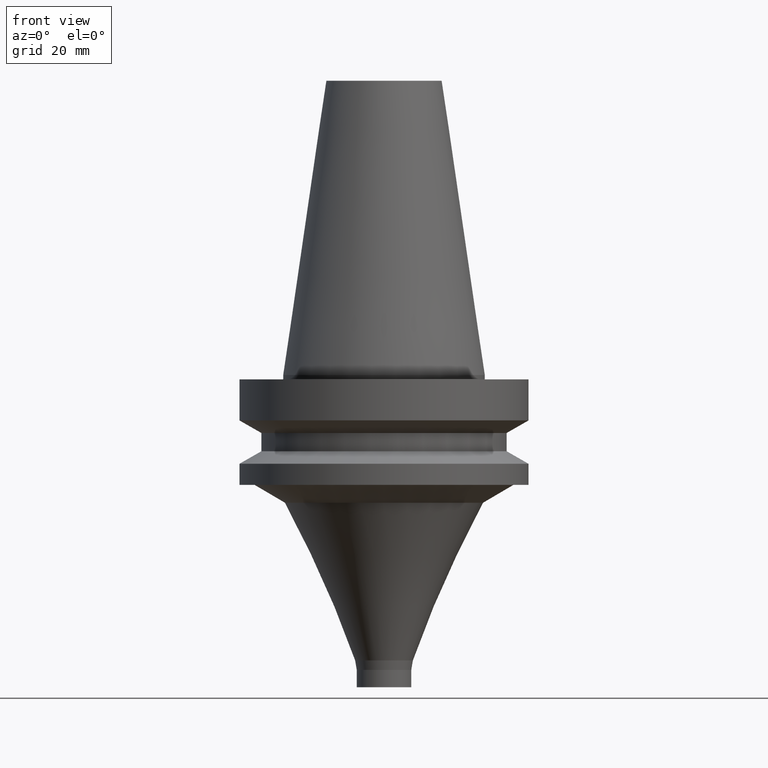
[diagram: clean part render]
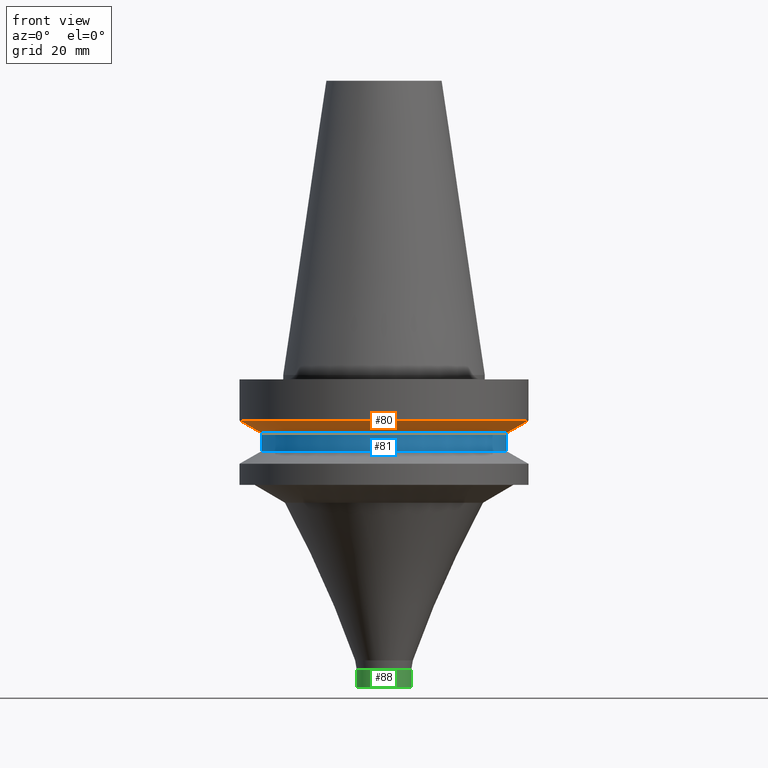
[diagram: same view with three faces highlighted in distinct colors, each labeled with its STEP entity id]
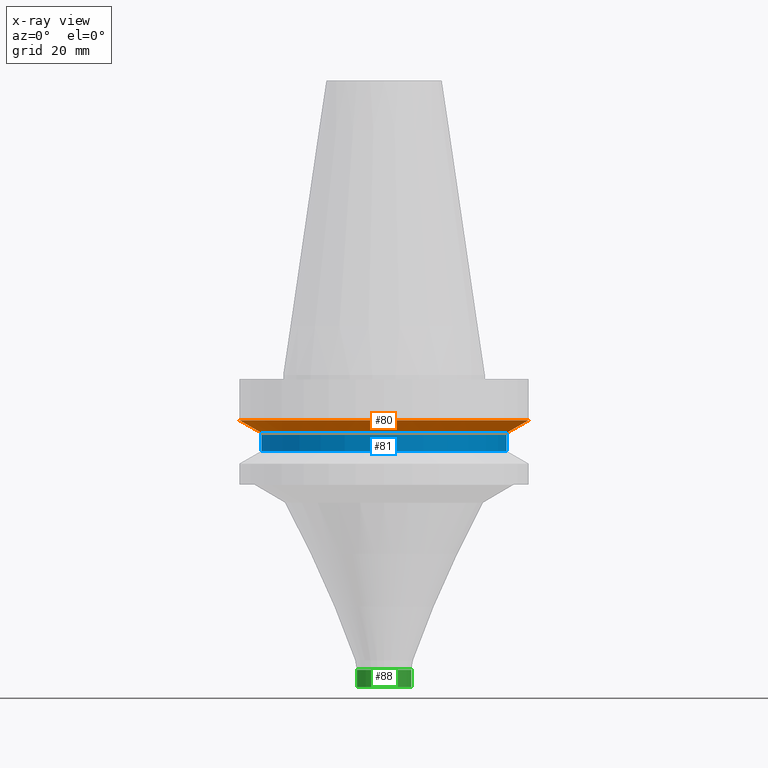
[diagram: x-ray of the same camera — body ghosted, the three highlighted faces saturated]
A machine part, front view with three faces highlighted in distinct colors.
The next image is the same camera in x-ray (body ghosted, the three faces saturated) — at least one of them is partly hidden behind the body in this view.
Their STEP definitions:

[orange] entity #80 — the highlighted conical surface has half-angle 60 deg.
#80=ADVANCED_FACE('',(#105,#106),#107,.T.);
#105=FACE_BOUND('',#148,.T.);
#106=FACE_BOUND('',#149,.T.);
#107=CONICAL_SURFACE('',#150,46.2500000000001,1.04719755119661);
#148=EDGE_LOOP('',(#201));
#149=EDGE_LOOP('',(#202));
#150=AXIS2_PLACEMENT_3D('',#203,#204,#205);
#201=ORIENTED_EDGE('',*,*,#255,.F.);
#202=ORIENTED_EDGE('',*,*,#254,.T.);
#203=CARTESIAN_POINT('',(1.09391964217128E-015,-2.97159550045893E-014,-17.865063509461));
#204=DIRECTION('',(-6.12323399573677E-017,-4.47299429684663E-016,1.0));
#205=DIRECTION('',(-3.2216343471957E-032,1.0,4.47299429684663E-016));
#254=EDGE_CURVE('',#272,#272,#273,.T.);
#255=EDGE_CURVE('',#274,#274,#275,.T.);
#272=VERTEX_POINT('',#300);
#273=CIRCLE('',#301,50.0);
#274=VERTEX_POINT('',#302);
#275=CIRCLE('',#303,42.5000000000003);
#300=CARTESIAN_POINT('',(9.61347737330673E-016,49.9999999999999,-15.7));
#301=AXIS2_PLACEMENT_3D('',#332,#333,#334);
#302=CARTESIAN_POINT('',(1.22649154701188E-015,42.5000000000003,-20.0301270189219));
#303=AXIS2_PLACEMENT_3D('',#335,#336,#337);
#332=CARTESIAN_POINT('',(9.61347737330675E-016,-3.06843866776022E-014,-15.7));
#333=DIRECTION('',(6.12323399573677E-017,4.47299429684663E-016,-1.0));
#334=DIRECTION('',(-3.2216343471957E-032,1.0,4.47299429684663E-016));
#335=CARTESIAN_POINT('',(1.22649154701188E-015,-2.87475233315763E-014,-20.0301270189219));
#336=DIRECTION('',(6.12323399573677E-017,4.47299429684663E-016,-1.0));
#337=DIRECTION('',(-3.2216343471957E-032,1.0,4.47299429684663E-016));

[blue] entity #81 — the highlighted cylindrical surface (bore or boss wall) has radius 42.5 mm, axis along (-0, -0, 1).
#81=ADVANCED_FACE('',(#108,#109),#110,.T.);
#108=FACE_BOUND('',#151,.T.);
#109=FACE_BOUND('',#152,.T.);
#110=CYLINDRICAL_SURFACE('',#153,42.5000000000002);
#151=EDGE_LOOP('',(#206));
#152=EDGE_LOOP('',(#207));
#153=AXIS2_PLACEMENT_3D('',#208,#209,#210);
#206=ORIENTED_EDGE('',*,*,#256,.F.);
#207=ORIENTED_EDGE('',*,*,#255,.T.);
#208=CARTESIAN_POINT('',(1.42059028701091E-015,-2.73296409549674E-014,-23.1999999999997));
#209=DIRECTION('',(-6.12323399573677E-017,-4.47299429684663E-016,1.0));
#210=DIRECTION('',(-3.2216343471957E-032,1.0,4.47299429684663E-016));
#255=EDGE_CURVE('',#274,#274,#275,.T.);
#256=EDGE_CURVE('',#276,#276,#277,.T.);
#274=VERTEX_POINT('',#302);
#275=CIRCLE('',#303,42.5000000000003);
#276=VERTEX_POINT('',#304);
#277=CIRCLE('',#305,42.5000000000001);
#302=CARTESIAN_POINT('',(1.22649154701188E-015,42.5000000000003,-20.0301270189219));
#303=AXIS2_PLACEMENT_3D('',#335,#336,#337);
#304=CARTESIAN_POINT('',(1.61468902700994E-015,42.5000000000001,-26.3698729810775));
#305=AXIS2_PLACEMENT_3D('',#338,#339,#340);
#335=CARTESIAN_POINT('',(1.22649154701188E-015,-2.87475233315763E-014,-20.0301270189219));
#336=DIRECTION('',(6.12323399573677E-017,4.47299429684663E-016,-1.0));
#337=DIRECTION('',(-3.2216343471957E-032,1.0,4.47299429684663E-016));
#338=CARTESIAN_POINT('',(1.61468902700994E-015,-2.59117585783585E-014,-26.3698729810775));
#339=DIRECTION('',(6.12323399573677E-017,4.47299429684663E-016,-1.0));
#340=DIRECTION('',(-3.2216343471957E-032,1.0,4.47299429684663E-016));

[green] entity #88 — the highlighted cylindrical surface (bore or boss wall) has radius 9.5 mm, axis along (-0, -0, 1).
#88=ADVANCED_FACE('',(#129,#130),#131,.T.);
#129=FACE_BOUND('',#172,.T.);
#130=FACE_BOUND('',#173,.T.);
#131=CYLINDRICAL_SURFACE('',#174,9.49999999999983);
#172=EDGE_LOOP('',(#241));
#173=EDGE_LOOP('',(#242));
#174=AXIS2_PLACEMENT_3D('',#243,#244,#245);
#241=ORIENTED_EDGE('',*,*,#263,.F.);
#242=ORIENTED_EDGE('',*,*,#262,.T.);
#243=CARTESIAN_POINT('',(6.42939569528903E-015,9.25945239152462E-015,-104.999999996169));
#244=DIRECTION('',(-6.12323399573676E-017,-4.47299429684663E-016,1.0));
#245=DIRECTION('',(-3.2216343471957E-032,1.0,4.47299429684663E-016));
#262=EDGE_CURVE('',#288,#288,#289,.T.);
#263=EDGE_CURVE('',#290,#290,#291,.T.);
#288=VERTEX_POINT('',#316);
#289=CIRCLE('',#317,9.49999999999973);
#290=VERTEX_POINT('',#318);
#291=CIRCLE('',#319,9.49999999999993);
#316=CARTESIAN_POINT('',(6.24569867542189E-015,9.49999999999973,-101.99999999625));
#317=AXIS2_PLACEMENT_3D('',#356,#357,#358);
#318=CARTESIAN_POINT('',(6.61309271515617E-015,9.49999999999994,-107.999999996088));
#319=AXIS2_PLACEMENT_3D('',#359,#360,#361);
#356=CARTESIAN_POINT('',(6.24569867542189E-015,7.91755410250688E-015,-101.99999999625));
#357=DIRECTION('',(6.12323399573677E-017,4.47299429684663E-016,-1.0));
#358=DIRECTION('',(-3.2216343471957E-032,1.0,4.47299429684663E-016));
#359=CARTESIAN_POINT('',(6.61309271515617E-015,1.06013506805424E-014,-107.999999996088));
#360=DIRECTION('',(6.12323399573677E-017,4.47299429684663E-016,-1.0));
#361=DIRECTION('',(-3.2216343471957E-032,1.0,4.47299429684663E-016));